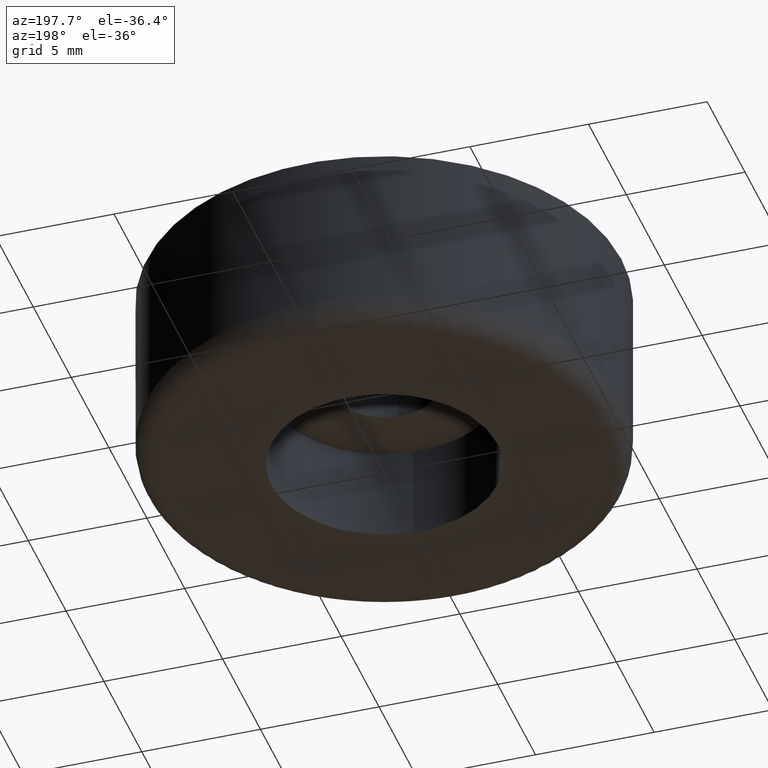
[diagram: clean part render]
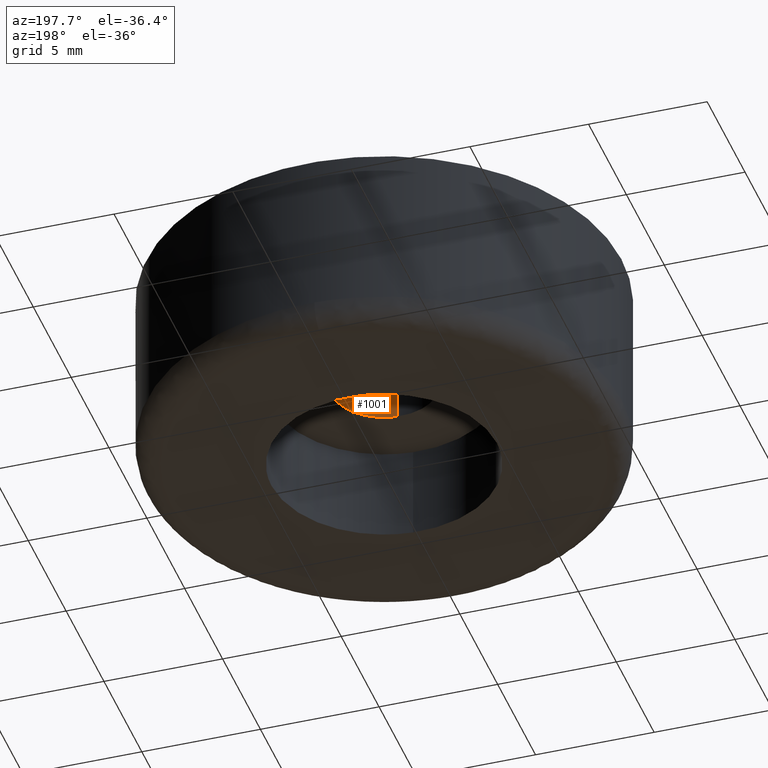
[diagram: same view with one face highlighted and labeled with its STEP entity id]
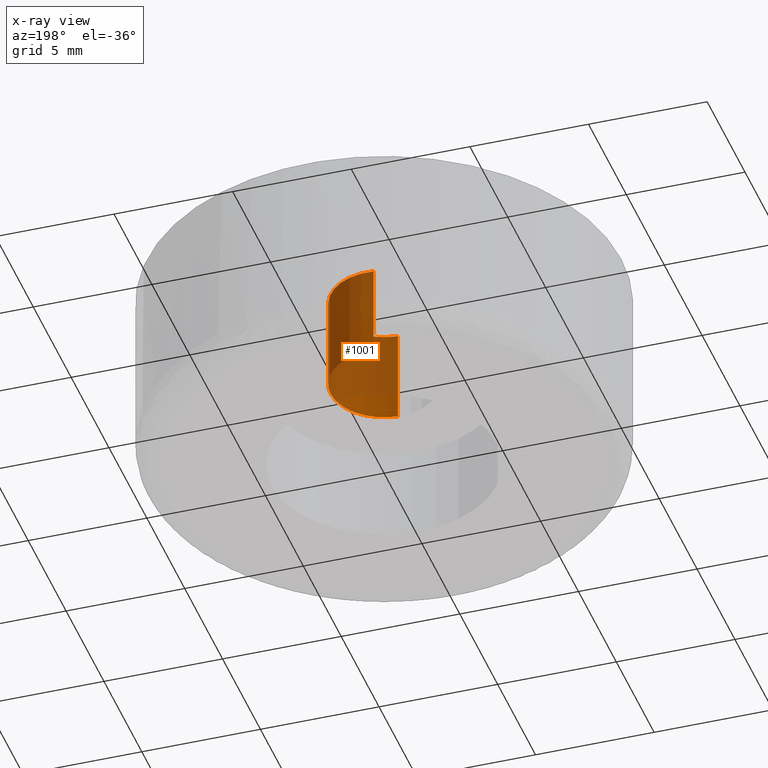
[diagram: x-ray of the same camera — body ghosted, the highlighted face saturated]
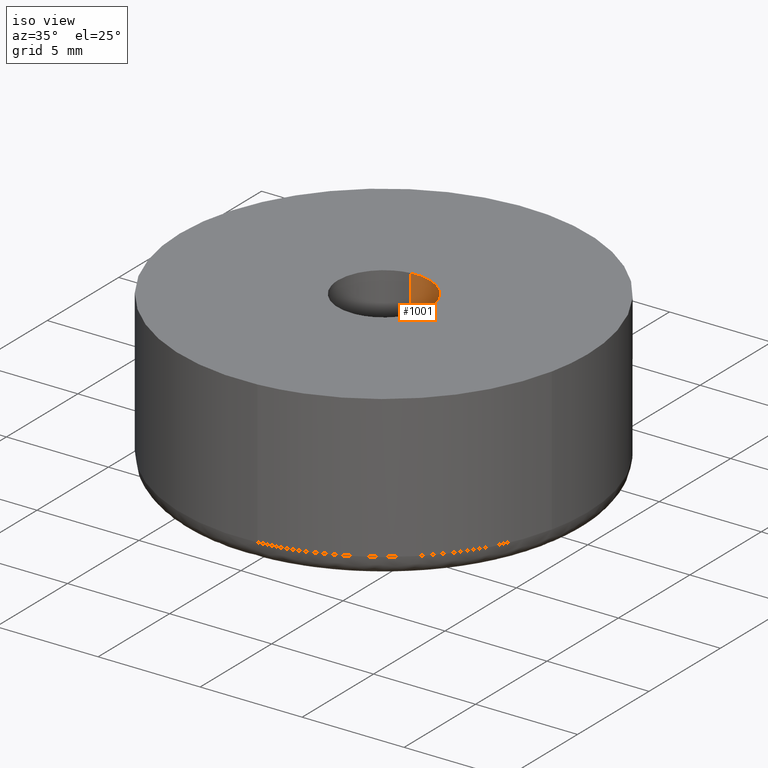
[diagram: same view with one face highlighted and labeled with its STEP entity id]
A machine part, auxiliary view. The second image highlights one B-rep face of the part: STEP entity #1001.
The next image is the same camera in x-ray: the body ghosted, the highlighted face saturated — about 86% of this face is hidden behind the body in this view.
A second angle (iso view) of the same face is appended — the face is thin or edge-on in the first view.
In plain terms, the highlighted face is a freeform B-spline surface patch.
Its self-contained STEP definition (entity closure, byte-faithful):
#899=CARTESIAN_POINT('',(-0.265577027977707,2.234271434318250,8.100000000000001));
#900=CARTESIAN_POINT('',(-0.201633139435450,2.241872134759362,8.100000000000000));
#901=CARTESIAN_POINT('',(-0.137359213953428,2.245803296449200,8.100000000000000));
#902=CARTESIAN_POINT('',(2.108444082495772,2.383162510402629,8.100000000000000));
#903=CARTESIAN_POINT('',(2.245803296449200,0.137359213953428,8.100000000000000));
#904=CARTESIAN_POINT('',(2.383162510402629,-2.108444082495772,8.100000000000000));
#905=CARTESIAN_POINT('',(0.137359213953428,-2.245803296449200,8.100000000000000));
#906=CARTESIAN_POINT('',(-0.265577027977707,2.234271434318250,3.897500000000000));
#907=CARTESIAN_POINT('',(-0.201633139435450,2.241872134759362,3.897500000000000));
#908=CARTESIAN_POINT('',(-0.137359213953428,2.245803296449200,3.897500000000000));
#909=CARTESIAN_POINT('',(2.108444082495772,2.383162510402629,3.897500000000000));
#910=CARTESIAN_POINT('',(2.245803296449200,0.137359213953428,3.897500000000000));
#911=CARTESIAN_POINT('',(2.383162510402629,-2.108444082495772,3.897500000000000));
#912=CARTESIAN_POINT('',(0.137359213953428,-2.245803296449200,3.897500000000000));
#920=(BOUNDED_SURFACE()B_SPLINE_SURFACE(2,1,((#899,#906),(#900,#907),(#901,#908),(#902,#909),(#903,#910),(#904,#911),(#905,#912)),.UNSPECIFIED.,.F.,.F.,.U.)B_SPLINE_SURFACE_WITH_KNOTS((3,2,2,3),(2,2),(0.0,0.149116882454314,3.877038943812169,7.604961005170023),(0.0,4.202500000000001),.UNSPECIFIED.)GEOMETRIC_REPRESENTATION_ITEM()RATIONAL_B_SPLINE_SURFACE(((0.977505800795127,0.977505800795127),(0.988284271247462,0.988284271247462),(1.0,1.0),(0.707106781186548,0.707106781186548),(1.0,1.0),(0.707106781186548,0.707106781186548),(1.0,1.0)))REPRESENTATION_ITEM('')SURFACE());
#921=CARTESIAN_POINT('',(-0.265572897743913,2.234271925251401,7.999999999999956));
#922=VERTEX_POINT('',#921);
#923=CARTESIAN_POINT('',(2.250000000000000,0.0,8.0));
#924=VERTEX_POINT('',#923);
#925=CARTESIAN_POINT('',(-0.265572897743913,2.234271925251401,7.999999999999956));
#926=CARTESIAN_POINT('',(-0.133252182268321,2.250000000000001,8.0));
#927=CARTESIAN_POINT('',(0.0,2.250000000000000,8.0));
#928=CARTESIAN_POINT('',(2.250000000000000,2.250000000000000,8.0));
#929=CARTESIAN_POINT('',(2.250000000000000,0.0,8.0));
#937=(BOUNDED_CURVE()B_SPLINE_CURVE(2,(#925,#926,#927,#928,#929),.UNSPECIFIED.,.F.,.U.)B_SPLINE_CURVE_WITH_KNOTS((3,2,3),(0.229562785932030,0.250000000000000,0.500000000000000),.UNSPECIFIED.)CURVE()GEOMETRIC_REPRESENTATION_ITEM()RATIONAL_B_SPLINE_CURVE((0.956027366537701,0.976056314352210,1.0,0.707106781186547,1.0))REPRESENTATION_ITEM(''));
#938=EDGE_CURVE('',#922,#924,#937,.T.);
#939=ORIENTED_EDGE('',*,*,#938,.F.);
#940=CARTESIAN_POINT('',(-0.265572947441810,2.234271919344237,4.0));
#941=VERTEX_POINT('',#940);
#942=CARTESIAN_POINT('',(-0.265572897743913,2.234271925251401,7.999999999999956));
#943=CARTESIAN_POINT('',(-0.265572947441810,2.234271919344237,4.0));
#944=QUASI_UNIFORM_CURVE('',1,(#942,#943),.UNSPECIFIED.,.F.,.U.);
#945=EDGE_CURVE('',#922,#941,#944,.T.);
#946=ORIENTED_EDGE('',*,*,#945,.T.);
#947=CARTESIAN_POINT('',(2.250000000000000,0.0,4.0));
#948=VERTEX_POINT('',#947);
#949=CARTESIAN_POINT('',(-0.265572947441810,2.234271919344238,4.0));
#950=CARTESIAN_POINT('',(-0.133252207379956,2.250000000000000,4.000000000000001));
#951=CARTESIAN_POINT('',(0.0,2.250000000000000,4.0));
#952=CARTESIAN_POINT('',(2.250000000000000,2.250000000000000,4.0));
#953=CARTESIAN_POINT('',(2.250000000000000,0.0,4.0));
#961=(BOUNDED_CURVE()B_SPLINE_CURVE(2,(#949,#950,#951,#952,#953),.UNSPECIFIED.,.F.,.U.)B_SPLINE_CURVE_WITH_KNOTS((3,2,3),(0.229562782172814,0.250000000000000,0.500000000000000),.UNSPECIFIED.)CURVE()GEOMETRIC_REPRESENTATION_ITEM()RATIONAL_B_SPLINE_CURVE((0.956027359169463,0.976056309948015,1.0,0.707106781186547,1.0))REPRESENTATION_ITEM(''));
#962=EDGE_CURVE('',#941,#948,#961,.T.);
#963=ORIENTED_EDGE('',*,*,#962,.T.);
#964=CARTESIAN_POINT('',(0.137359213972935,-2.245803296448007,4.0));
#965=VERTEX_POINT('',#964);
#966=CARTESIAN_POINT('',(2.250000000000000,0.0,4.0));
#967=CARTESIAN_POINT('',(2.250000000000000,-2.116588650500986,4.000000000000000));
#968=CARTESIAN_POINT('',(0.137359213972935,-2.245803296448008,4.000000000000001));
#976=(BOUNDED_CURVE()B_SPLINE_CURVE(2,(#966,#967,#968),.UNSPECIFIED.,.F.,.U.)B_SPLINE_CURVE_WITH_KNOTS((3,3),(0.500000000000000,0.739332962238972),.UNSPECIFIED.)CURVE()GEOMETRIC_REPRESENTATION_ITEM()RATIONAL_B_SPLINE_CURVE((1.0,0.719603993286676,0.976072041666779))REPRESENTATION_ITEM(''));
#977=EDGE_CURVE('',#948,#965,#976,.T.);
#978=ORIENTED_EDGE('',*,*,#977,.T.);
#979=CARTESIAN_POINT('',(0.137359213972935,-2.245803296448007,8.0));
#980=VERTEX_POINT('',#979);
#981=CARTESIAN_POINT('',(0.137359213972935,-2.245803296448007,8.0));
#982=CARTESIAN_POINT('',(0.137359213972935,-2.245803296448007,4.0));
#983=QUASI_UNIFORM_CURVE('',1,(#981,#982),.UNSPECIFIED.,.F.,.U.);
#984=EDGE_CURVE('',#980,#965,#983,.T.);
#985=ORIENTED_EDGE('',*,*,#984,.F.);
#986=CARTESIAN_POINT('',(2.250000000000000,0.0,8.0));
#987=CARTESIAN_POINT('',(2.250000000000000,-2.116588650500986,8.0));
#988=CARTESIAN_POINT('',(0.137359213972935,-2.245803296448008,8.0));
#996=(BOUNDED_CURVE()B_SPLINE_CURVE(2,(#986,#987,#988),.UNSPECIFIED.,.F.,.U.)B_SPLINE_CURVE_WITH_KNOTS((3,3),(0.500000000000000,0.739332962238972),.UNSPECIFIED.)CURVE()GEOMETRIC_REPRESENTATION_ITEM()RATIONAL_B_SPLINE_CURVE((1.0,0.719603993286676,0.976072041666779))REPRESENTATION_ITEM(''));
#997=EDGE_CURVE('',#924,#980,#996,.T.);
#998=ORIENTED_EDGE('',*,*,#997,.F.);
#999=EDGE_LOOP('',(#939,#946,#963,#978,#985,#998));
#1000=FACE_OUTER_BOUND('',#999,.T.);
#1001=ADVANCED_FACE('',(#1000),#920,.F.);